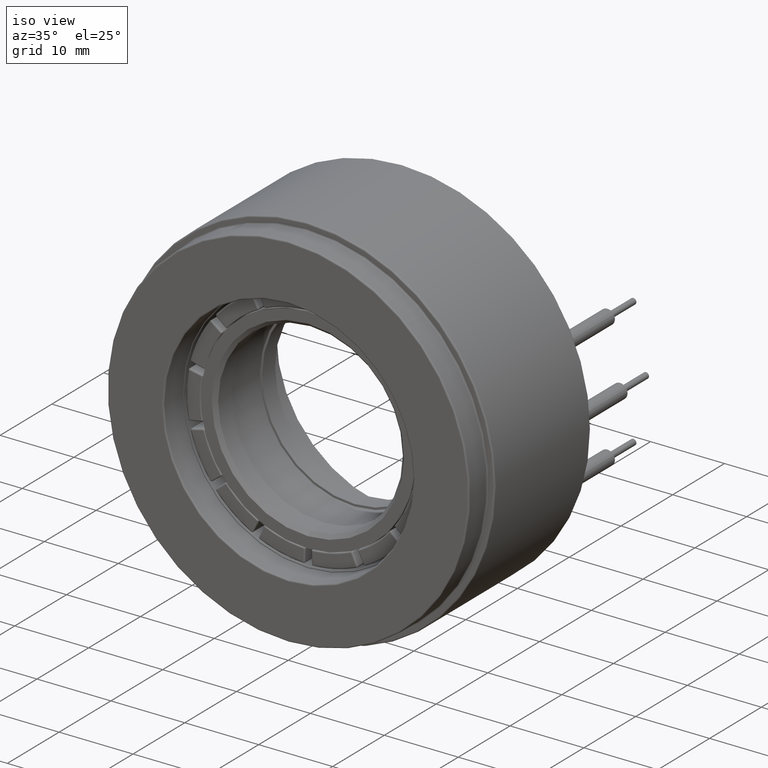
[diagram: clean part render]
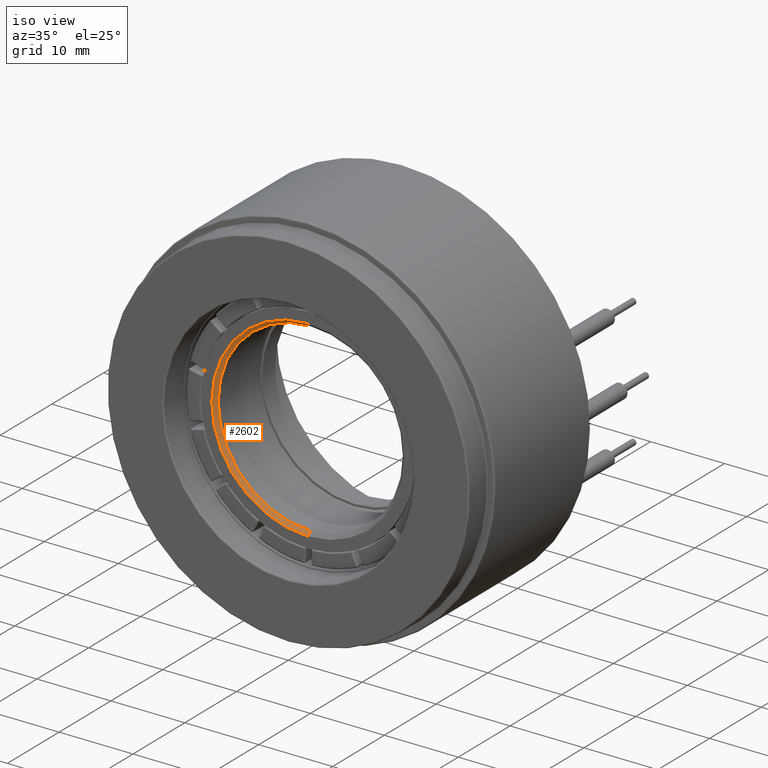
[diagram: same view with one face highlighted and labeled with its STEP entity id]
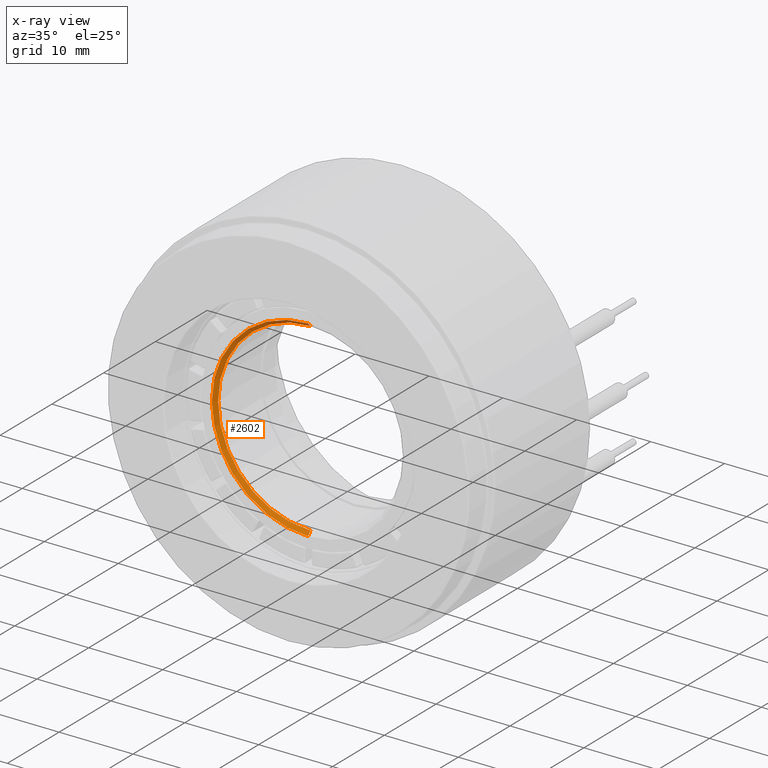
[diagram: x-ray of the same camera — body ghosted, the highlighted face saturated]
A machine part, iso view. The second image highlights one B-rep face of the part: STEP entity #2602.
The next image is the same camera in x-ray: the body ghosted, the highlighted face saturated — about 0% of this face is hidden behind the body in this view.
In plain terms, the highlighted conical surface has half-angle 45 deg.
Its self-contained STEP definition (entity closure, byte-faithful):
#177 = DIRECTION ( 'NONE',  ( 0.0000000000000000000, 0.0000000000000000000, -1.000000000000000000 ) ) ;
#213 = EDGE_LOOP ( 'NONE', ( #527, #642, #985, #3239 ) ) ;
#256 = CARTESIAN_POINT ( 'NONE',  ( 1.592040838891561100E-015, 0.0000000000000000000, 13.00000000000001800 ) ) ;
#311 = DIRECTION ( 'NONE',  ( 0.0000000000000000000, 1.000000000000000000, 0.0000000000000000000 ) ) ;
#379 = FACE_OUTER_BOUND ( 'NONE', #213, .T. ) ;
#527 = ORIENTED_EDGE ( 'NONE', *, *, #2555, .F. ) ;
#642 = ORIENTED_EDGE ( 'NONE', *, *, #1087, .F. ) ;
#691 = DIRECTION ( 'NONE',  ( 0.0000000000000000000, -1.000000000000000000, 0.0000000000000000000 ) ) ;
#798 = AXIS2_PLACEMENT_3D ( 'NONE', #1462, #691, #177 ) ;
#825 = CARTESIAN_POINT ( 'NONE',  ( 0.0000000000000000000, 0.0000000000000000000, 0.0000000000000000000 ) ) ;
#847 = DIRECTION ( 'NONE',  ( 0.0000000000000000000, 0.0000000000000000000, -1.000000000000000000 ) ) ;
#906 = VERTEX_POINT ( 'NONE', #2377 ) ;
#985 = ORIENTED_EDGE ( 'NONE', *, *, #2319, .T. ) ;
#1087 = EDGE_CURVE ( 'NONE', #906, #2148, #2592, .T. ) ;
#1236 = CARTESIAN_POINT ( 'NONE',  ( 0.0000000000000000000, 0.0000000000000000000, -13.00000000000001800 ) ) ;
#1382 = EDGE_CURVE ( 'NONE', #2827, #2600, #1967, .T. ) ;
#1462 = CARTESIAN_POINT ( 'NONE',  ( 0.0000000000000000000, 0.5000000000000195400, 0.0000000000000000000 ) ) ;
#1510 = VECTOR ( 'NONE', #2057, 999.9999999999998900 ) ;
#1555 = CARTESIAN_POINT ( 'NONE',  ( 0.0000000000000000000, 0.5000000000000195400, -12.50000000000000000 ) ) ;
#1676 = CARTESIAN_POINT ( 'NONE',  ( 1.530808498934191500E-015, 0.5000000000000195400, 12.50000000000000000 ) ) ;
#1693 = VECTOR ( 'NONE', #1703, 999.9999999999998900 ) ;
#1703 = DIRECTION ( 'NONE',  ( 8.659560562354919300E-017, -0.7071067811865487900, 0.7071067811865463500 ) ) ;
#1877 = LINE ( 'NONE', #1555, #1510 ) ;
#1967 = CIRCLE ( 'NONE', #2808, 13.00000000000001800 ) ;
#1987 = LINE ( 'NONE', #2220, #1693 ) ;
#2000 = CARTESIAN_POINT ( 'NONE',  ( 0.0000000000000000000, 0.5000000000000195400, 0.0000000000000000000 ) ) ;
#2057 = DIRECTION ( 'NONE',  ( 0.0000000000000000000, -0.7071067811865487900, -0.7071067811865463500 ) ) ;
#2148 = VERTEX_POINT ( 'NONE', #1676 ) ;
#2220 = CARTESIAN_POINT ( 'NONE',  ( 1.530808498934191100E-015, 0.5000000000000195400, 12.50000000000000000 ) ) ;
#2255 = CONICAL_SURFACE ( 'NONE', #2872, 12.50000000000000000, 0.7853981633974466100 ) ;
#2319 = EDGE_CURVE ( 'NONE', #906, #2600, #1877, .T. ) ;
#2377 = CARTESIAN_POINT ( 'NONE',  ( 0.0000000000000000000, 0.5000000000000195400, -12.50000000000000000 ) ) ;
#2555 = EDGE_CURVE ( 'NONE', #2148, #2827, #1987, .T. ) ;
#2592 = CIRCLE ( 'NONE', #798, 12.50000000000000000 ) ;
#2600 = VERTEX_POINT ( 'NONE', #1236 ) ;
#2602 = ADVANCED_FACE ( 'NONE', ( #379 ), #2255, .F. ) ;
#2766 = DIRECTION ( 'NONE',  ( 0.0000000000000000000, -1.000000000000000000, 0.0000000000000000000 ) ) ;
#2808 = AXIS2_PLACEMENT_3D ( 'NONE', #825, #311, #847 ) ;
#2827 = VERTEX_POINT ( 'NONE', #256 ) ;
#2872 = AXIS2_PLACEMENT_3D ( 'NONE', #2000, #2766, #3020 ) ;
#3020 = DIRECTION ( 'NONE',  ( 0.0000000000000000000, 0.0000000000000000000, -1.000000000000000000 ) ) ;
#3239 = ORIENTED_EDGE ( 'NONE', *, *, #1382, .F. ) ;